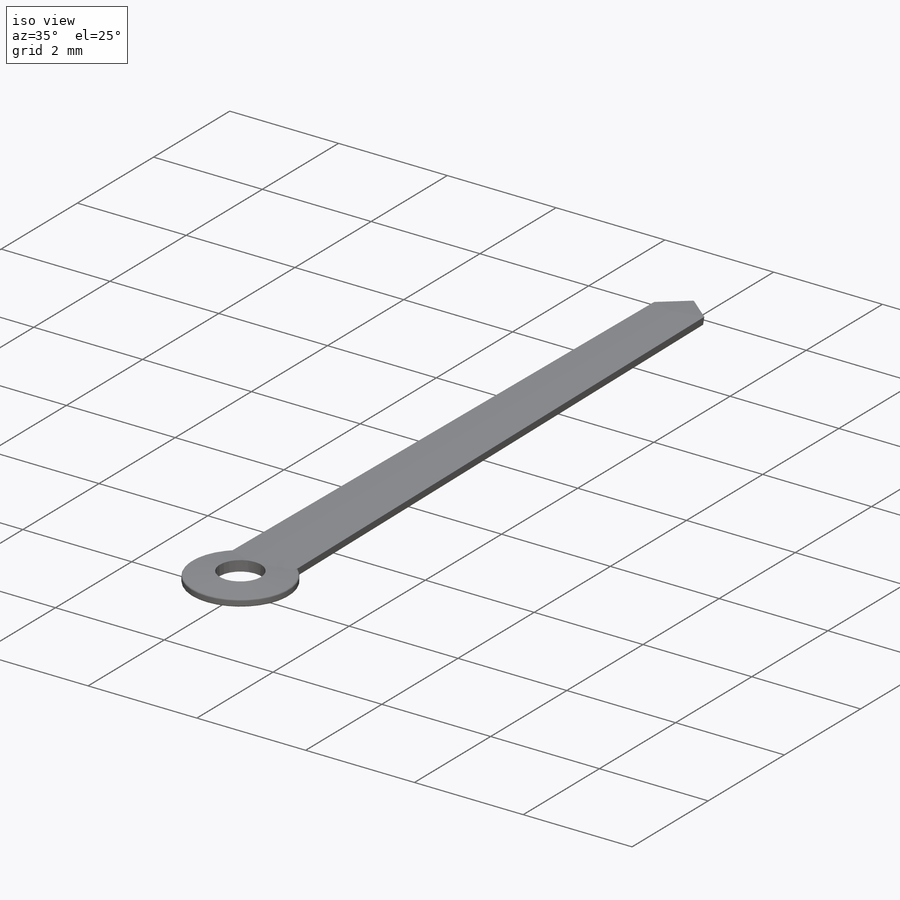
[diagram: iso view]
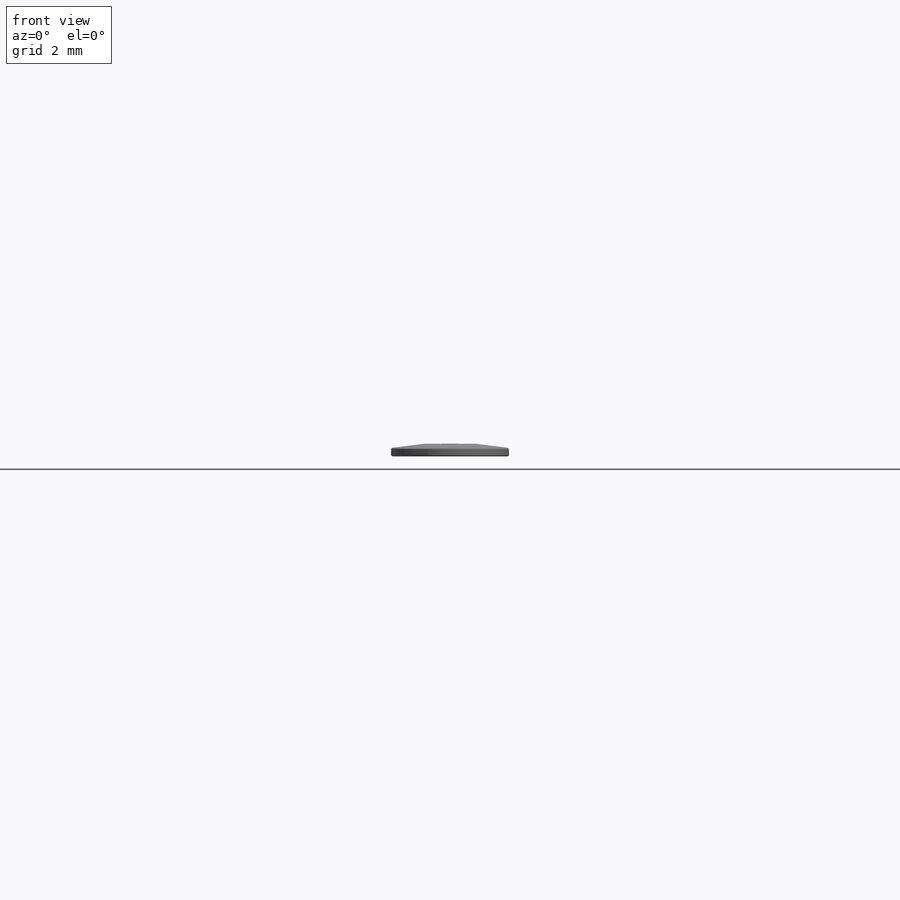
[diagram: front view]
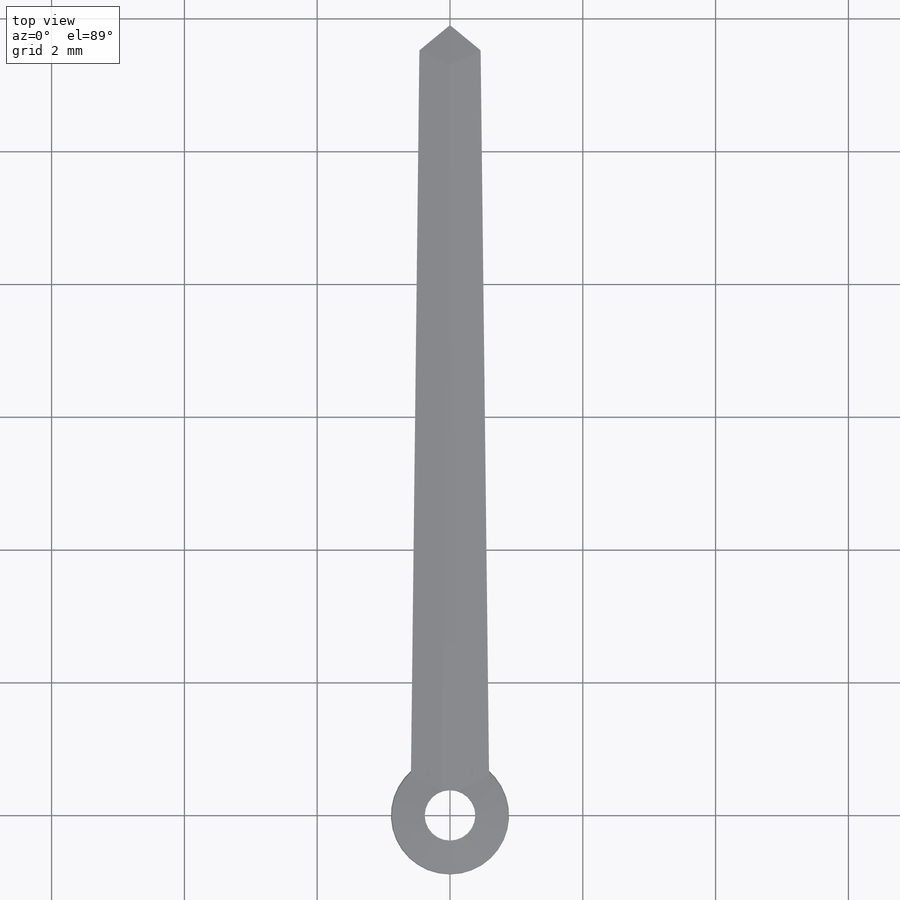
[diagram: top view]
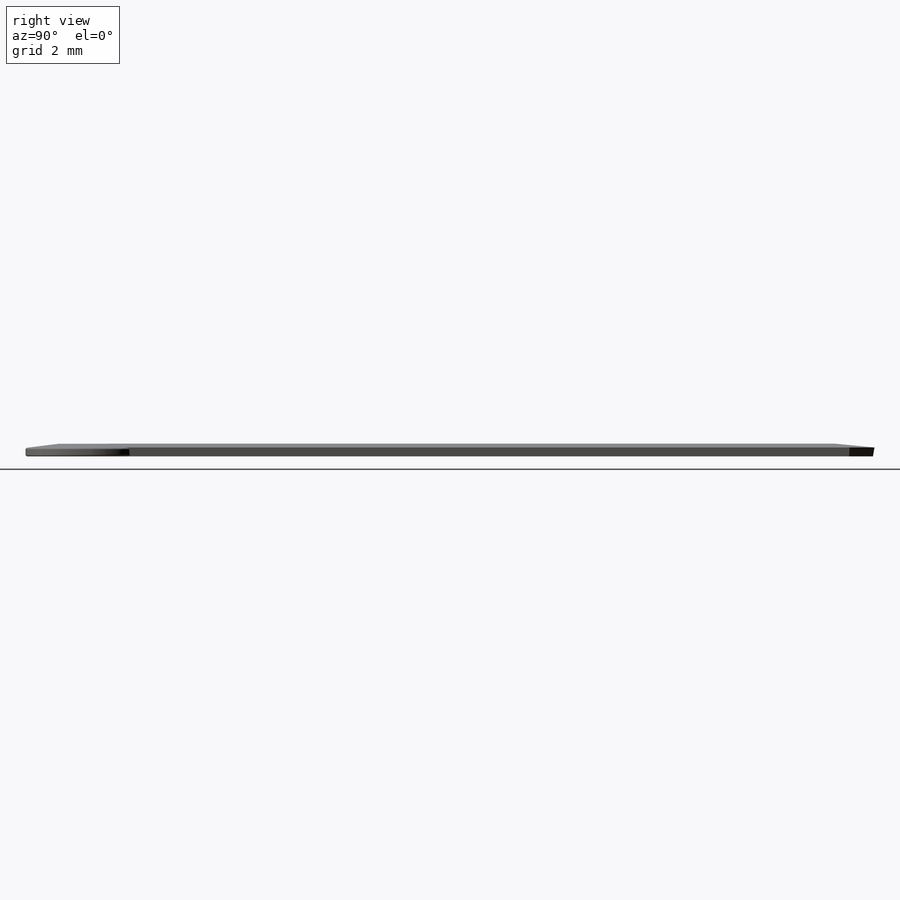
[diagram: right view]
SOLIDWORKS PART (.sldprt)
format: sldprt  version: not decoded by parser v0  size: 178,688 bytes
history: native  units: mm
features: chamfer x2, material x1, sketch x1, extrude x1, fillet x1 (+11 scaffold rows collapsed)
feature tree (17):
  scaffold x11  (default folders/planes/origin — collapsed)
  material  "Material <not specified>"
  sketch  "Sketch1"  dims[D1=0.762mm D2=1.778mm D3=1.27mm D4=10.922mm D5=0.127mm D6=0.127mm]
  extrude  "Extrude1"  Depth=0.1905mm
  chamfer  "Chamfer1"  Distance=0.0635mm Angle=82.91deg
  chamfer  "Chamfer2"  Distance=0.0635mm Angle=82.91deg
  fillet  "Fillet1"  Radius=0.0254mm
decode coverage: 5 of 5 modeling features carry decoded parameters
note: suppression state not decoded; provenance and decode notes live in map.json
